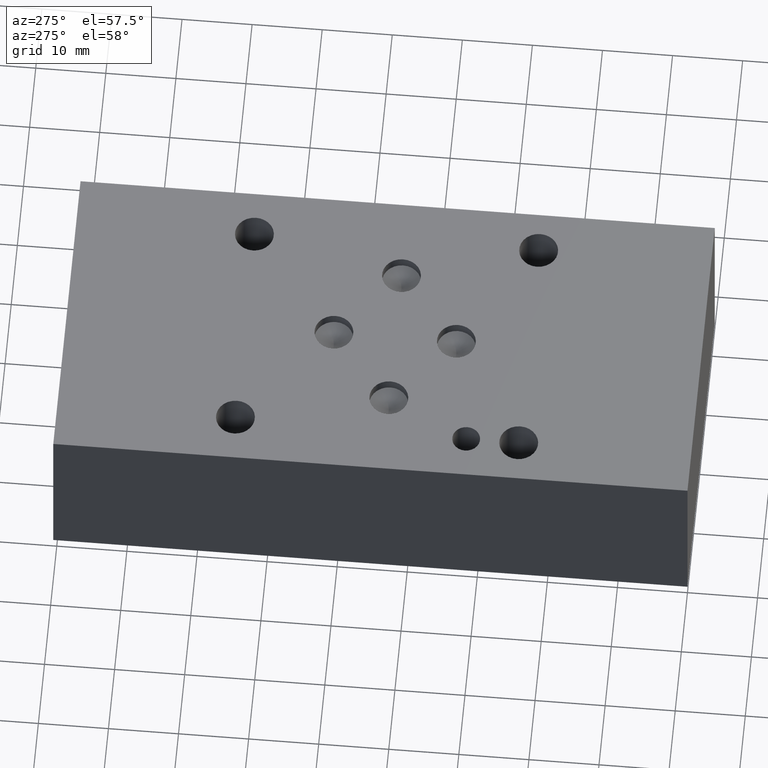
[diagram: clean part render]
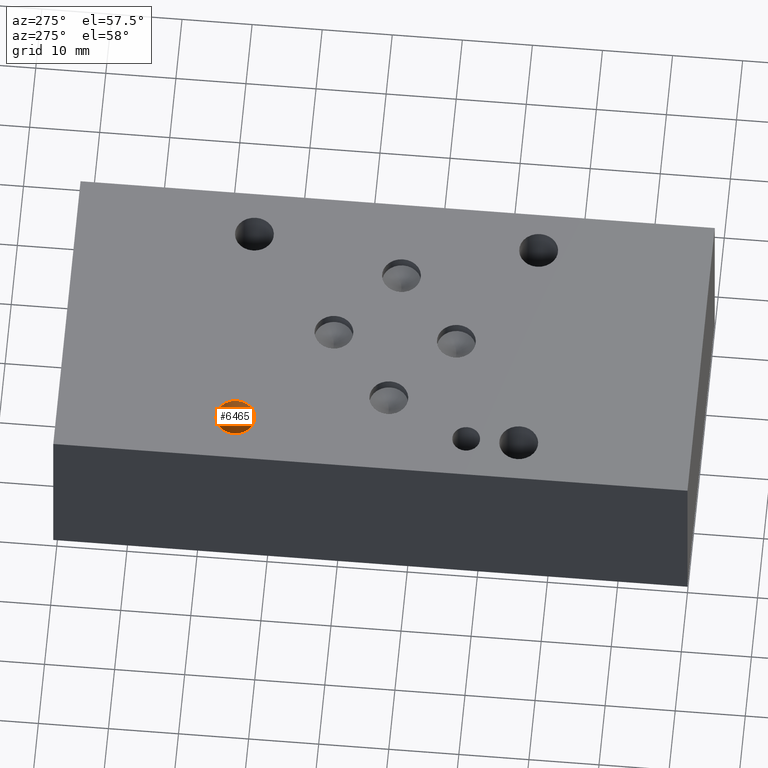
[diagram: same view with one face highlighted and labeled with its STEP entity id]
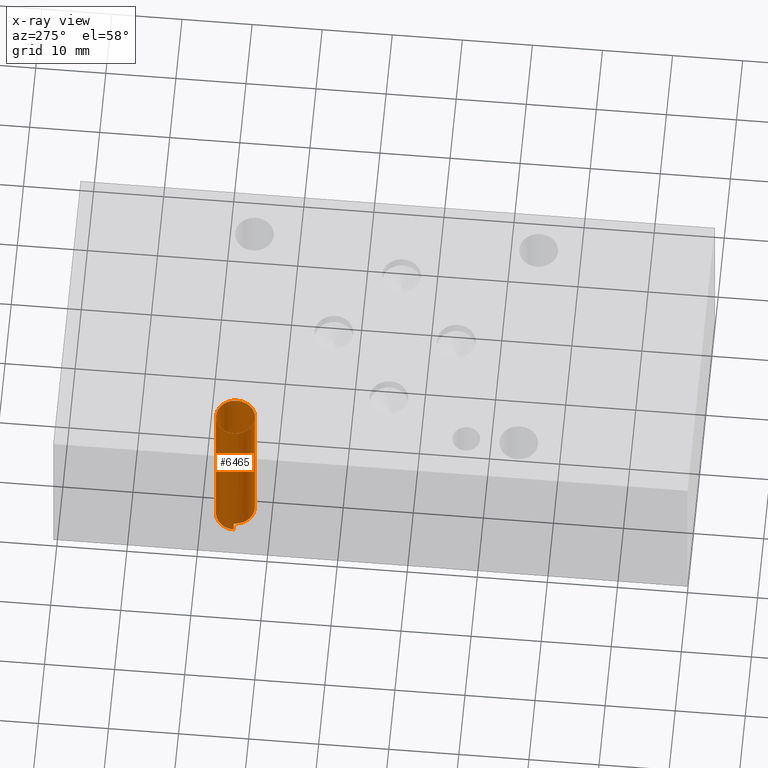
[diagram: x-ray of the same camera — body ghosted, the highlighted face saturated]
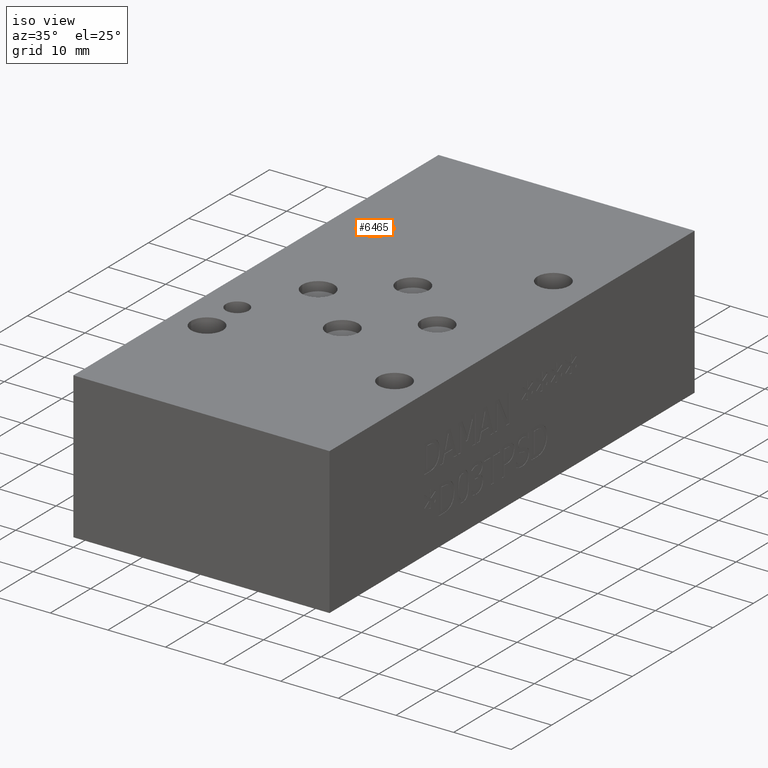
[diagram: same view with one face highlighted and labeled with its STEP entity id]
A machine part, auxiliary view. The second image highlights one B-rep face of the part: STEP entity #6465.
The next image is the same camera in x-ray: the body ghosted, the highlighted face saturated — about 2% of this face is hidden behind the body in this view.
A second angle (iso view) of the same face is appended — the face is thin or edge-on in the first view.
In plain terms, the highlighted cylindrical surface (bore or boss wall) has radius 2.7686 mm, axis along (0, 0, 1).
Its self-contained STEP definition (entity closure, byte-faithful):
#48=CIRCLE('',#6743,2.7686);
#58=CIRCLE('',#6763,2.7686);
#62=CIRCLE('',#6768,2.7686);
#89=CYLINDRICAL_SURFACE('',#6767,2.7686);
#670=FACE_OUTER_BOUND('',#1037,.T.);
#1037=EDGE_LOOP('',(#5702,#5703,#5704,#5705,#5706,#5707,#5708,#5709));
#1703=LINE('',#10784,#2373);
#1704=LINE('',#10790,#2374);
#1716=LINE('',#10904,#2386);
#2373=VECTOR('',#7922,10.);
#2374=VECTOR('',#7927,10.);
#2386=VECTOR('',#7989,2.7686);
#2564=B_SPLINE_CURVE_WITH_KNOTS('',3,(#10793,#10794,#10795,#10796,#10797,
#10798,#10799,#10800,#10801,#10802,#10803,#10804,#10805,#10806,#10807,#10808,
#10809,#10810,#10811,#10812),.UNSPECIFIED.,.F.,.F.,(4,2,2,2,2,2,2,2,2,4),
(0.,0.104196215321337,0.208392430642674,0.312456533318025,0.416520635993375,
0.520584738668726,0.624648841344076,0.728845056665413,0.83304127198675,
0.833358708532309),.UNSPECIFIED.);
#3115=VERTEX_POINT('',#10782);
#3116=VERTEX_POINT('',#10783);
#3117=VERTEX_POINT('',#10785);
#3118=VERTEX_POINT('',#10787);
#3119=VERTEX_POINT('',#10789);
#3136=VERTEX_POINT('',#10902);
#3973=EDGE_CURVE('',#3115,#3116,#1703,.T.);
#3975=EDGE_CURVE('',#3118,#3117,#48,.T.);
#3976=EDGE_CURVE('',#3119,#3118,#1704,.T.);
#3978=EDGE_CURVE('',#3117,#3115,#2564,.T.);
#4000=EDGE_CURVE('',#3119,#3116,#58,.T.);
#4004=EDGE_CURVE('',#3136,#3136,#62,.T.);
#4005=EDGE_CURVE('',#3136,#3116,#1716,.T.);
#5702=ORIENTED_EDGE('',*,*,#4004,.F.);
#5703=ORIENTED_EDGE('',*,*,#4005,.T.);
#5704=ORIENTED_EDGE('',*,*,#4000,.F.);
#5705=ORIENTED_EDGE('',*,*,#3976,.T.);
#5706=ORIENTED_EDGE('',*,*,#3975,.T.);
#5707=ORIENTED_EDGE('',*,*,#3978,.T.);
#5708=ORIENTED_EDGE('',*,*,#3973,.T.);
#5709=ORIENTED_EDGE('',*,*,#4005,.F.);
#6465=ADVANCED_FACE('',(#670),#89,.F.);
#6743=AXIS2_PLACEMENT_3D('',#10788,#7925,#7926);
#6763=AXIS2_PLACEMENT_3D('',#10897,#7977,#7978);
#6767=AXIS2_PLACEMENT_3D('',#10901,#7985,#7986);
#6768=AXIS2_PLACEMENT_3D('',#10903,#7987,#7988);
#7922=DIRECTION('',(0.,0.,-1.));
#7925=DIRECTION('center_axis',(0.,0.,-1.));
#7926=DIRECTION('ref_axis',(1.,0.,0.));
#7927=DIRECTION('',(0.,0.,1.));
#7977=DIRECTION('center_axis',(0.,0.,1.));
#7978=DIRECTION('ref_axis',(1.,0.,0.));
#7985=DIRECTION('center_axis',(0.,0.,1.));
#7986=DIRECTION('ref_axis',(1.,0.,0.));
#7987=DIRECTION('center_axis',(0.,0.,-1.));
#7988=DIRECTION('ref_axis',(1.,0.,0.));
#7989=DIRECTION('',(0.,0.,-1.));
#10782=CARTESIAN_POINT('',(3.98780182052812,65.097025,1.59845));
#10783=CARTESIAN_POINT('',(3.98780455130474,65.098612491649,0.));
#10784=CARTESIAN_POINT('',(3.98780182052812,65.097025,0.799225000000002));
#10785=CARTESIAN_POINT('',(9.52499271788033,65.09385,1.59845420433375));
#10787=CARTESIAN_POINT('',(9.52499817947188,65.097025,1.59845));
#10788=CARTESIAN_POINT('Origin',(6.7564,65.09385,1.59845));
#10789=CARTESIAN_POINT('',(9.52499544869526,65.095437508351,0.));
#10790=CARTESIAN_POINT('',(9.52499817947188,65.097025,0.799225000000002));
#10793=CARTESIAN_POINT('Ctrl Pts',(9.52499271788033,65.09385,1.59845420433375));
#10794=CARTESIAN_POINT('Ctrl Pts',(9.52419611142798,64.746530500316,1.59891412528345));
#10795=CARTESIAN_POINT('Ctrl Pts',(9.45399561451503,64.3761983368136,1.5994047385505));
#10796=CARTESIAN_POINT('Ctrl Pts',(9.17035189556873,63.6951958172206,1.60030731455487));
#10797=CARTESIAN_POINT('Ctrl Pts',(8.95690867173841,63.3845254618634,1.60071926594772));
#10798=CARTESIAN_POINT('Ctrl Pts',(8.465239069254,62.8944482320679,1.60136928022029));
#10799=CARTESIAN_POINT('Ctrl Pts',(8.15431239853522,62.6822008286456,1.60165089900501));
#10800=CARTESIAN_POINT('Ctrl Pts',(7.47333303541129,62.4007767117058,1.60202435168422));
#10801=CARTESIAN_POINT('Ctrl Pts',(7.10328034225117,62.3316,1.60211617420933));
#10802=CARTESIAN_POINT('Ctrl Pts',(6.40951965774883,62.3316,1.60211617420933));
#10803=CARTESIAN_POINT('Ctrl Pts',(6.03946696458871,62.4007767117058,1.60202435168422));
#10804=CARTESIAN_POINT('Ctrl Pts',(5.35848760146478,62.6822008286456,1.60165089900501));
#10805=CARTESIAN_POINT('Ctrl Pts',(5.047560930746,62.8944482320679,1.60136928022029));
#10806=CARTESIAN_POINT('Ctrl Pts',(4.55589132826159,63.3845254618634,1.60071926594772));
#10807=CARTESIAN_POINT('Ctrl Pts',(4.34244810443127,63.6951958172206,1.60030731455487));
#10808=CARTESIAN_POINT('Ctrl Pts',(4.05880438548497,64.3761983368136,1.5994047385505));
#10809=CARTESIAN_POINT('Ctrl Pts',(3.98860388857202,64.746530500316,1.59891412528345));
#10810=CARTESIAN_POINT('Ctrl Pts',(3.98780485523689,65.0949081181077,1.59845280317233));
#10811=CARTESIAN_POINT('Ctrl Pts',(3.98780303446018,65.09596645194,1.59845140172708));
#10812=CARTESIAN_POINT('Ctrl Pts',(3.98780182052812,65.097025,1.59845));
#10897=CARTESIAN_POINT('Origin',(6.7564,65.1002,0.));
#10901=CARTESIAN_POINT('Origin',(6.7564,65.1002,-78.5771547025596));
#10902=CARTESIAN_POINT('',(3.9878,65.1002,25.4));
#10903=CARTESIAN_POINT('Origin',(6.7564,65.1002,25.4));
#10904=CARTESIAN_POINT('',(3.9878,65.1002,-78.5771547025596));